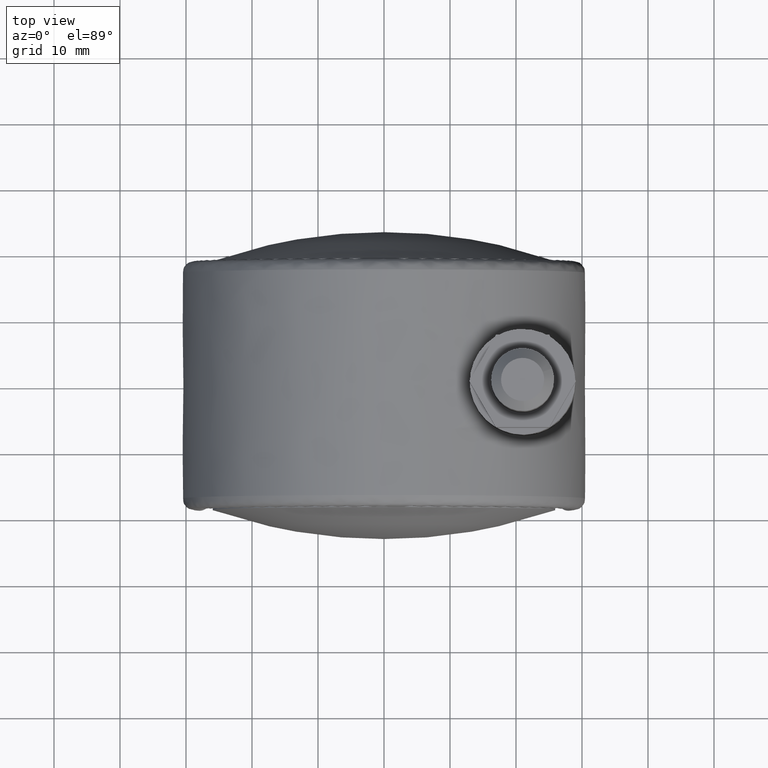
[diagram: clean part render]
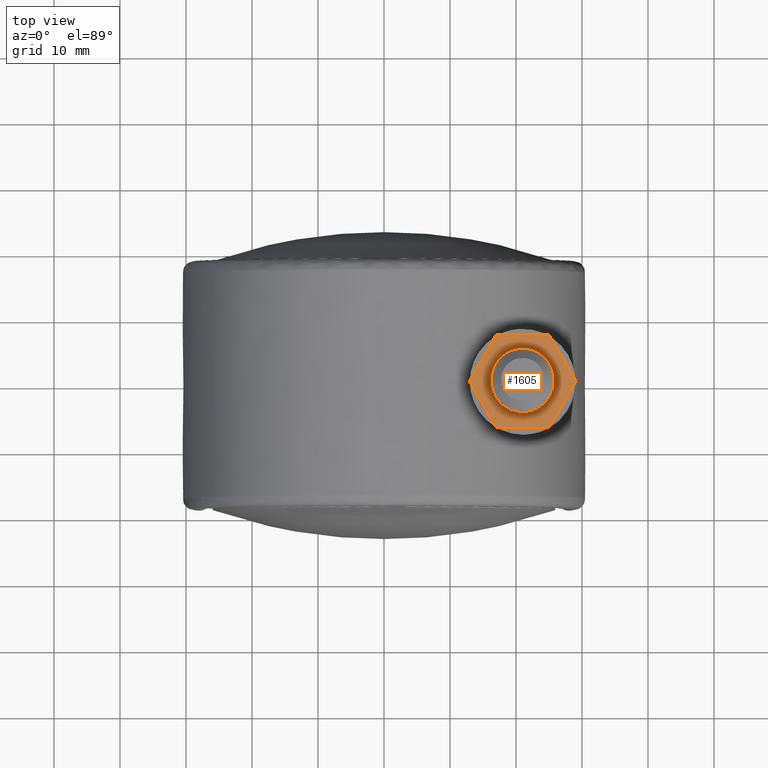
[diagram: same view with one face highlighted and labeled with its STEP entity id]
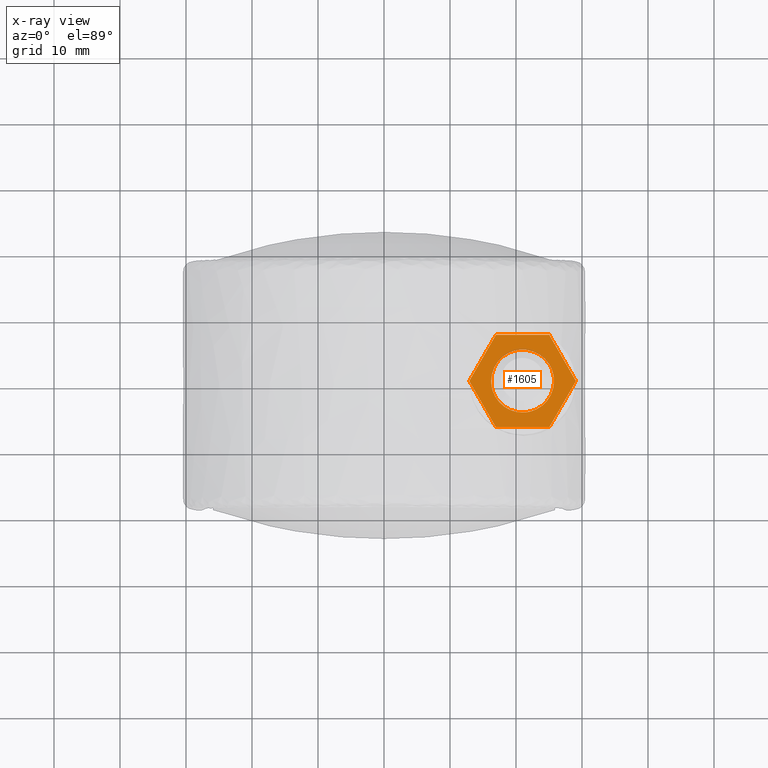
[diagram: x-ray of the same camera — body ghosted, the highlighted face saturated]
A machine part, top view. The second image highlights one B-rep face of the part: STEP entity #1605.
The next image is the same camera in x-ray: the body ghosted, the highlighted face saturated — about 2% of this face is hidden behind the body in this view.
In plain terms, the highlighted face is a freeform B-spline surface patch.
Its self-contained STEP definition (entity closure, byte-faithful):
#1377=CARTESIAN_POINT('',(20.437861957342339,4.729207869294497,39.0));
#1378=VERTEX_POINT('',#1377);
#1379=CARTESIAN_POINT('',(25.762499999999999,0.0,39.0));
#1380=VERTEX_POINT('',#1379);
#1381=CARTESIAN_POINT('',(20.437861957342331,4.729207869294497,39.000000000000007));
#1382=CARTESIAN_POINT('',(20.717945130051813,4.762499999999999,39.0));
#1383=CARTESIAN_POINT('',(21.0,4.762500000000000,39.0));
#1384=CARTESIAN_POINT('',(25.762499999999999,4.762500000000000,39.000000000000007));
#1385=CARTESIAN_POINT('',(25.762499999999999,0.0,39.0));
#1393=(BOUNDED_CURVE()B_SPLINE_CURVE(2,(#1381,#1382,#1383,#1384,#1385),.UNSPECIFIED.,.F.,.U.)B_SPLINE_CURVE_WITH_KNOTS((3,2,3),(0.229562473508150,0.250000000000000,0.500000000000000),.UNSPECIFIED.)CURVE()GEOMETRIC_REPRESENTATION_ITEM()RATIONAL_B_SPLINE_CURVE((0.956026754173197,0.976055948324867,1.0,0.707106781186548,1.0))REPRESENTATION_ITEM(''));
#1394=EDGE_CURVE('',#1378,#1380,#1393,.T.);
#1404=CARTESIAN_POINT('',(21.290742426166439,-4.753617053531478,39.0));
#1405=VERTEX_POINT('',#1404);
#1411=CARTESIAN_POINT('',(25.762499999999999,0.0,39.0));
#1412=CARTESIAN_POINT('',(25.762499999999992,-4.480113817658096,39.000000000000007));
#1413=CARTESIAN_POINT('',(21.290742426166446,-4.753617053531478,39.0));
#1421=(BOUNDED_CURVE()B_SPLINE_CURVE(2,(#1411,#1412,#1413),.UNSPECIFIED.,.F.,.U.)B_SPLINE_CURVE_WITH_KNOTS((3,3),(0.500000000000000,0.739333007373753),.UNSPECIFIED.)CURVE()GEOMETRIC_REPRESENTATION_ITEM()RATIONAL_B_SPLINE_CURVE((1.0,0.719603940407991,0.976072138399227))REPRESENTATION_ITEM(''));
#1422=EDGE_CURVE('',#1380,#1405,#1421,.T.);
#1445=CARTESIAN_POINT('',(16.237500000000001,0.0,39.0));
#1446=VERTEX_POINT('',#1445);
#1447=CARTESIAN_POINT('',(16.237500000000001,0.0,39.0));
#1448=CARTESIAN_POINT('',(16.237500000000008,4.229931179654495,38.999999999999993));
#1449=CARTESIAN_POINT('',(20.437861957342339,4.729207869294497,39.0));
#1457=(BOUNDED_CURVE()B_SPLINE_CURVE(2,(#1447,#1448,#1449),.UNSPECIFIED.,.F.,.U.)B_SPLINE_CURVE_WITH_KNOTS((3,3),(0.0,0.229562473508150),.UNSPECIFIED.)CURVE()GEOMETRIC_REPRESENTATION_ITEM()RATIONAL_B_SPLINE_CURVE((1.0,0.731050832861680,0.956026754173196))REPRESENTATION_ITEM(''));
#1458=EDGE_CURVE('',#1446,#1378,#1457,.T.);
#1460=CARTESIAN_POINT('',(21.290742426166446,-4.753617053531478,39.0));
#1461=CARTESIAN_POINT('',(21.145506911782245,-4.762500000000001,39.000000000000014));
#1462=CARTESIAN_POINT('',(21.0,-4.762500000000000,39.0));
#1463=CARTESIAN_POINT('',(16.237500000000008,-4.762500000000000,39.000000000000007));
#1464=CARTESIAN_POINT('',(16.237500000000001,0.0,39.0));
#1472=(BOUNDED_CURVE()B_SPLINE_CURVE(2,(#1460,#1461,#1462,#1463,#1464),.UNSPECIFIED.,.F.,.U.)B_SPLINE_CURVE_WITH_KNOTS((3,2,3),(0.739333007373753,0.750000000000000,1.0),.UNSPECIFIED.)CURVE()GEOMETRIC_REPRESENTATION_ITEM()RATIONAL_B_SPLINE_CURVE((0.976072138399227,0.987502840778557,1.0,0.707106781186548,1.0))REPRESENTATION_ITEM(''));
#1473=EDGE_CURVE('',#1405,#1446,#1472,.T.);
#1550=CARTESIAN_POINT('',(12.110377979488090,-7.699299972865272,39.0));
#1551=CARTESIAN_POINT('',(29.891149297843970,-7.699299972865272,39.0));
#1552=CARTESIAN_POINT('',(12.110377979488090,7.699300348374304,39.0));
#1553=CARTESIAN_POINT('',(29.891149297843970,7.699300348374304,39.0));
#1554=B_SPLINE_SURFACE_WITH_KNOTS('',1,1,((#1550,#1552),(#1551,#1553)),.UNSPECIFIED.,.F.,.F.,.U.,(2,2),(2,2),(0.0,17.780771318355882),(0.0,15.398600321239581),.UNSPECIFIED.);
#1555=CARTESIAN_POINT('',(12.917859999999999,0.0,39.0));
#1556=VERTEX_POINT('',#1555);
#1557=CARTESIAN_POINT('',(16.959312000000001,6.999999999999770,39.0));
#1558=VERTEX_POINT('',#1557);
#1559=CARTESIAN_POINT('',(12.917859999999999,0.0,39.0));
#1560=CARTESIAN_POINT('',(16.959312000000001,6.999999999999770,39.0));
#1561=QUASI_UNIFORM_CURVE('',1,(#1559,#1560),.UNSPECIFIED.,.F.,.U.);
#1562=EDGE_CURVE('',#1556,#1558,#1561,.T.);
#1563=ORIENTED_EDGE('',*,*,#1562,.F.);
#1564=CARTESIAN_POINT('',(16.959312000000001,-7.0,39.0));
#1565=VERTEX_POINT('',#1564);
#1566=CARTESIAN_POINT('',(16.959312000000001,-7.0,39.0));
#1567=CARTESIAN_POINT('',(12.917859999999999,0.0,39.0));
#1568=QUASI_UNIFORM_CURVE('',1,(#1566,#1567),.UNSPECIFIED.,.F.,.U.);
#1569=EDGE_CURVE('',#1565,#1556,#1568,.T.);
#1570=ORIENTED_EDGE('',*,*,#1569,.F.);
#1571=CARTESIAN_POINT('',(25.042215999999900,-7.0,39.0));
#1572=VERTEX_POINT('',#1571);
#1573=CARTESIAN_POINT('',(25.042215999999900,-7.0,39.0));
#1574=CARTESIAN_POINT('',(16.959312000000001,-7.0,39.0));
#1575=QUASI_UNIFORM_CURVE('',1,(#1573,#1574),.UNSPECIFIED.,.F.,.U.);
#1576=EDGE_CURVE('',#1572,#1565,#1575,.T.);
#1577=ORIENTED_EDGE('',*,*,#1576,.F.);
#1578=CARTESIAN_POINT('',(29.083667999999999,0.0,39.0));
#1579=VERTEX_POINT('',#1578);
#1580=CARTESIAN_POINT('',(29.083667999999999,0.0,39.0));
#1581=CARTESIAN_POINT('',(25.042215999999900,-7.0,39.0));
#1582=QUASI_UNIFORM_CURVE('',1,(#1580,#1581),.UNSPECIFIED.,.F.,.U.);
#1583=EDGE_CURVE('',#1579,#1572,#1582,.T.);
#1584=ORIENTED_EDGE('',*,*,#1583,.F.);
#1585=CARTESIAN_POINT('',(25.042215999999900,6.999999999999770,39.0));
#1586=VERTEX_POINT('',#1585);
#1587=CARTESIAN_POINT('',(25.042215999999900,6.999999999999770,39.0));
#1588=CARTESIAN_POINT('',(29.083667999999999,0.0,39.0));
#1589=QUASI_UNIFORM_CURVE('',1,(#1587,#1588),.UNSPECIFIED.,.F.,.U.);
#1590=EDGE_CURVE('',#1586,#1579,#1589,.T.);
#1591=ORIENTED_EDGE('',*,*,#1590,.F.);
#1592=CARTESIAN_POINT('',(16.959312000000001,6.999999999999770,39.0));
#1593=CARTESIAN_POINT('',(25.042215999999900,6.999999999999770,39.0));
#1594=QUASI_UNIFORM_CURVE('',1,(#1592,#1593),.UNSPECIFIED.,.F.,.U.);
#1595=EDGE_CURVE('',#1558,#1586,#1594,.T.);
#1596=ORIENTED_EDGE('',*,*,#1595,.F.);
#1597=EDGE_LOOP('',(#1563,#1570,#1577,#1584,#1591,#1596));
#1598=FACE_OUTER_BOUND('',#1597,.T.);
#1599=ORIENTED_EDGE('',*,*,#1422,.T.);
#1600=ORIENTED_EDGE('',*,*,#1473,.T.);
#1601=ORIENTED_EDGE('',*,*,#1458,.T.);
#1602=ORIENTED_EDGE('',*,*,#1394,.T.);
#1603=EDGE_LOOP('',(#1599,#1600,#1601,#1602));
#1604=FACE_BOUND('',#1603,.T.);
#1605=ADVANCED_FACE('',(#1598,#1604),#1554,.T.);